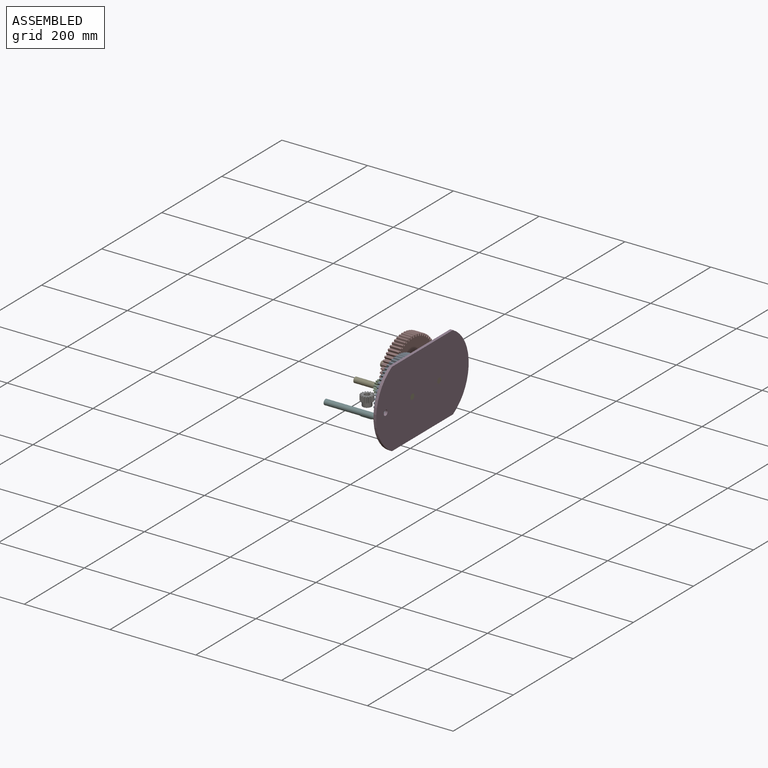
[diagram: assembled view]
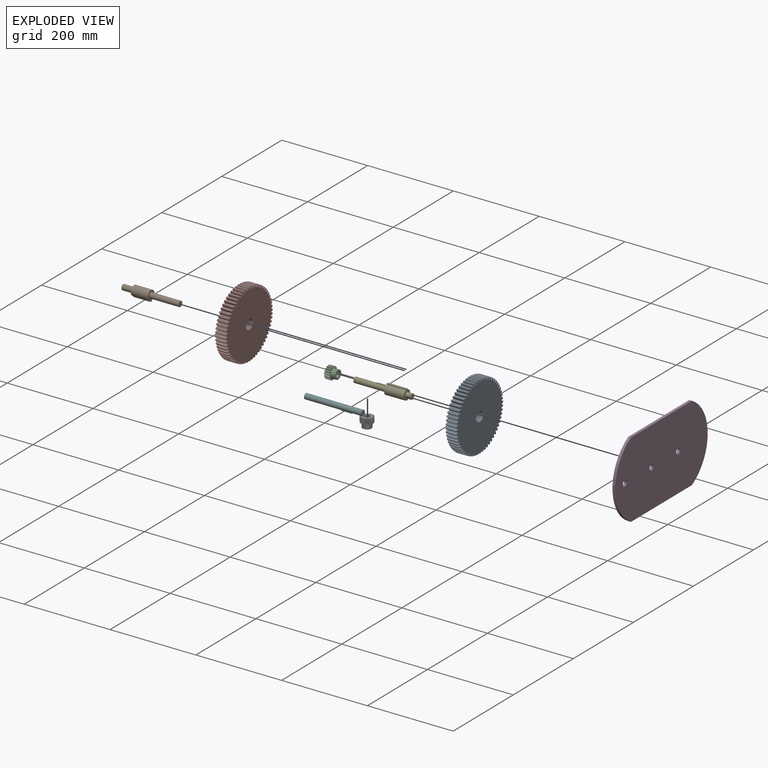
[diagram: exploded view]
GUIDED TOUR — MATED ASSEMBLY (Onshape document d9b905dab19b7fb7c35d887c, AutoMate assembly d9b905dab19b7fb7c35d887c_5e38b64e866237bc13c88aaf_ab64c40f906c745f3397f8be_default)

This assembly has 8 components, labeled P0..P7 below (a component is one placed occurrence of a part; the same part can appear more than once), held together by 10 mates. A mate is a constraint between two components; its type names the relative motion it leaves free:
  PLANAR — leaves sliding in the plane through the listed point (normal = the listed direction) and rotation about that normal free,
  SLIDER — leaves translation along the listed axis free.
Axis/direction vectors are unit vectors and 'through' points are millimeter coordinates, both in the assembly's world frame.

MATES
  1. SLIDER "Slider 1": P4 <-> P3, axis (1.000, 0.000, 0.000) through (10.44, -8.08, 14.03) mm
  2. SLIDER "Slider 3": P7 <-> P1, axis (1.000, 0.000, 0.000) through (-50.27, 80.82, 14.03) mm
  3. PLANAR "Planar 4": P2 <-> P4, direction (1.000, 0.000, 0.000) through (-48.08, -8.08, 13.77) mm
  4. PLANAR "Planar 6": P0 <-> P4, direction (-1.000, 0.000, 0.000) through (-48.08, -8.02, 14.03) mm
  5. PLANAR "Planar 3": P5 <-> P3, direction (1.000, 0.000, 0.000) through (10.44, -107.13, 5.17) mm
  6. SLIDER "Slider 4": P3 <-> P1, axis (1.000, 0.000, 0.000) through (10.44, 80.82, 14.03) mm
  7. SLIDER "Slider 2": P0 <-> P4, axis (1.000, 0.000, 0.000) through (-24.26, -8.08, 14.03) mm
  8. PLANAR "Planar 5": P2 <-> P4, direction (0.000, 1.000, 0.000) through (-63.37, -9.67, 21.08) mm
  9. PLANAR "Planar 2": P3 <-> P1, direction (1.000, 0.000, 0.000) through (10.44, 80.82, 14.03) mm
  10. PLANAR "Planar 1": P4 <-> P3, direction (1.000, 0.000, 0.000) through (10.44, -8.08, 14.03) mm

ASSEMBLY ORDER
  1. P4 — the base component [order heuristic]
  2. P2 — core [order heuristic]
  3. P1 [order verified]
  4. P7 [order verified]
  5. P0 — core [order heuristic]
  6. P3 [order verified]
  7. P5 [order verified]
  8. P6 [order verified]
Order-tag legend:
  [order verified] — this step's position reverses a verified removal order: the component was checked to insert without passing through the ones already placed.
  [order heuristic] — the first 3 components form the assembly's core: parts whose collision-free extraction could not be verified, listed in mate-graph order.

Of the 8 components, 3 carry the full construction recipe — the FeatureScript program that regenerates the part's solid from scratch; the rest are supplied as boundary geometry only.
Each toured component is shown spotlighted twice — in the assembled view, then in the exploded view, where a leader line traces a displaced component back to its assembled socket (saturated green if recipe-attached, orange if geometry-only; every other component desaturated gray) — followed by its recipe or geometry summary and the mates that hold it.
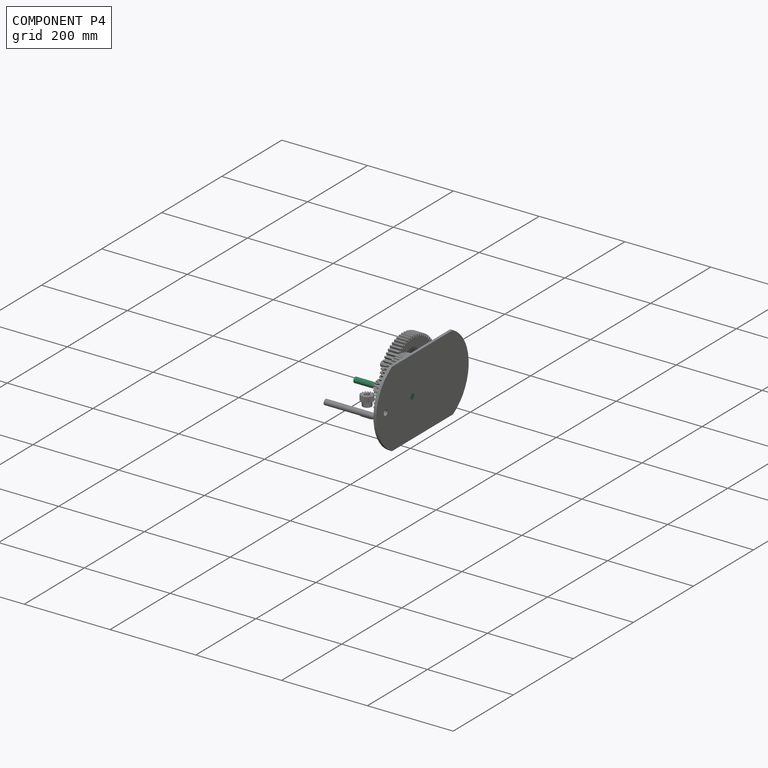
[diagram: component P4 — assembled]
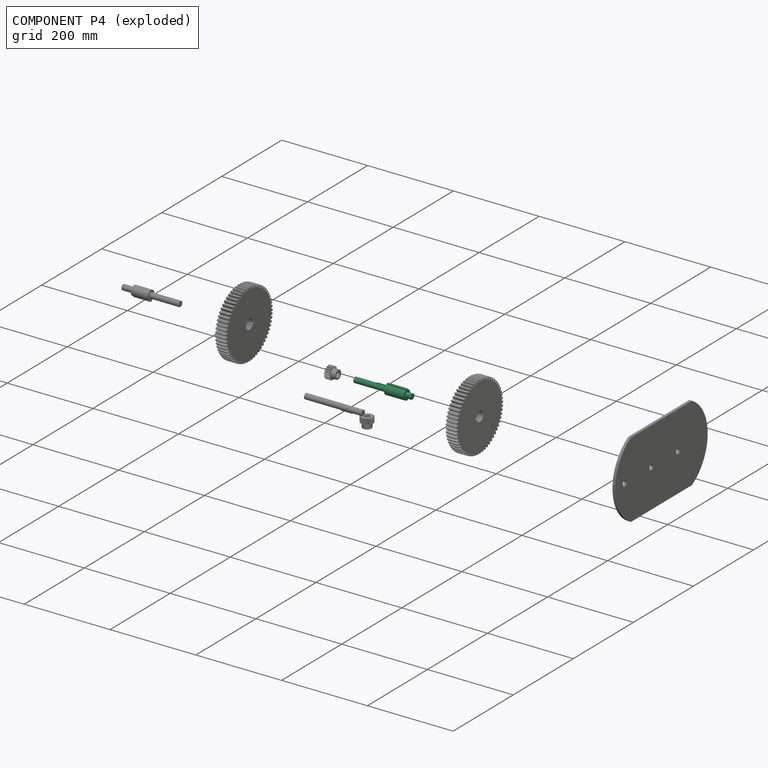
[diagram: component P4 — exploded]
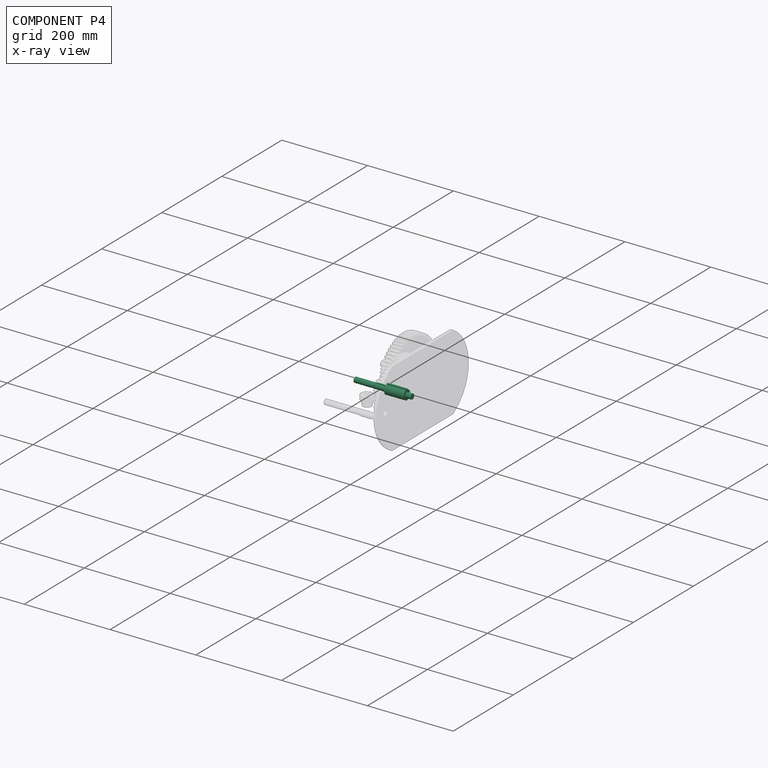
[diagram: component P4 — x-ray view]
COMPONENT P4 — recipe-attached (CADFS 00604843, mesh-verified: the recipe's output STEP matches this component's geometry to below the mesh-comparison resolution (tessellation chordal tolerance ~0.206 mm)).
Held by: SLIDER mate "Slider 1" to P3; PLANAR mate "Planar 4" to P2; PLANAR mate "Planar 6" to P0; SLIDER mate "Slider 2" to P0; PLANAR mate "Planar 5" to P2; PLANAR mate "Planar 1" to P3.
Construction recipe (FeatureScript — the CAD program that rebuilds this solid; sketch coordinates are in the units given by the * unit suffixes, e.g. mm):

FeatureScript 1511;
import(path : "onshape/std/geometry.fs", version : "1511.0");
import(path : "onshape/std/common.fs", version : "1511.0");
const mm = millimeter;
const VERTEX = EntityType.VERTEX;
const EDGE = EntityType.EDGE;
const FACE = EntityType.FACE;
const BODY = EntityType.BODY;
function v(x, y){return vector(x, y);}
function OD(order){return orderDisambiguation(order);}
function OSD(set){return originalSetDisambiguation(set);}
function TD(topology){return topologyDisambiguation(topology);}
function TDD(query){return trueDependencyDisambiguation(query);}
function sQuery(a, b, c) {return sketchEntityQuery(a, b, c);}

annotation { "Feature Type Name" : "Feature", "Feature Type Description" : "" }
export const myFeature = defineFeature(function(context is Context, id is Id, definition is map)
    precondition{}
    {
        {
            var Q0;
            Q0=qCreatedBy(makeId("Front.planeOp"),FACE);
            var sketch = newSketch(context, id + "F0", { "sketchPlane" : qUnion([Q0])});
            skLineSegment(sketch, "E0.bottom", {"start": v(0, 0) * mm, "end": v(133.35, 0) * mm});
            skLineSegment(sketch, "E0.top", {"start": v(0, 6.35) * mm, "end": v(133.35, 6.35) * mm});
            skLineSegment(sketch, "E0.left", {"start": v(0, 0) * mm, "end": v(0, 6.35) * mm});
            skLineSegment(sketch, "E0.right", {"start": v(133.35, 0) * mm, "end": v(133.35, 6.35) * mm});
            skLineSegment(sketch, "E1.bottom", {"start": v(120.65, 0) * mm, "end": v(74.83, 0) * mm});
            skLineSegment(sketch, "E1.top", {"start": v(120.65, 11.11) * mm, "end": v(74.83, 11.11) * mm});
            skLineSegment(sketch, "E1.left", {"start": v(120.65, 0) * mm, "end": v(120.65, 11.11) * mm});
            skLineSegment(sketch, "E1.right", {"start": v(74.83, 0) * mm, "end": v(74.83, 11.11) * mm});
            skLineSegment(sketch, "E2", {"start": v(120.65, 0) * mm, "end": v(133.35, 0) * mm});
            skSolve(sketch);
        }
        {
            var Q0;
            {var subQ0=sQuery(id+"F0.wireOp",EDGE,"E0.bottom");Q0=makeQuery(id+"F0.imprint","IMPRINT",FACE,{"disambiguationData":[TD([[makeQuery(id+"F0.imprint","IMPRINT",EDGE,{"derivedFrom":subQ0}),1.0]])]});}
            var Q1;
            {var subQ5=sQuery(id+"F0.wireOp",EDGE,"E1.bottom");Q1=makeQuery(id+"F0.imprint","IMPRINT",FACE,{"disambiguationData":[TD([[makeQuery(id+"F0.imprint","IMPRINT",EDGE,{"derivedFrom":subQ5}),-1.0]])]});}
            var Q2;
            {var subQ5=sQuery(id+"F0.wireOp",EDGE,"E1.top");Q2=makeQuery(id+"F0.imprint","IMPRINT",FACE,{"disambiguationData":[TD([[makeQuery(id+"F0.imprint","IMPRINT",EDGE,{"derivedFrom":subQ5}),1.0]])]});}
            var Q3;
            {var subQ0=sQuery(id+"F0.wireOp",EDGE,"E0.right");Q3=makeQuery(id+"F0.imprint","IMPRINT",FACE,{"disambiguationData":[TD([[makeQuery(id+"F0.imprint","IMPRINT",EDGE,{"derivedFrom":subQ0}),1.0]])]});}
            var Q4;
            Q4=sQuery(id+"F0.wireOp",EDGE,"E0.bottom");
            revolve(context, id + "F1", {"entities" : qUnion([Q0, Q1, Q2, Q3]), "axis" : qUnion([Q4]), "revolveType" : RevolveType.FULL});
        }
        {
            var Q0;
            Q0=makeQuery(id+"F1.opRevolve","SWEPT_FACE",FACE,{"disambiguationData":[OSD([sQuery(id+"F0.wireOp",EDGE,"E1.left")])]});
            var sketch = newSketch(context, id + "F2", { "sketchPlane" : qUnion([Q0])});
            skLineSegment(sketch, "E3", {"start": v(-2.39, 10.85) * mm, "end": v(2.39, 10.85) * mm});
            skLineSegment(sketch, "E4", {"start": v(-2.39, 10.85) * mm, "end": v(-2.39, 13.14) * mm});
            skLineSegment(sketch, "E5", {"start": v(-2.39, 13.14) * mm, "end": v(2.39, 13.14) * mm});
            skLineSegment(sketch, "E6", {"start": v(2.39, 13.14) * mm, "end": v(2.39, 10.85) * mm});
            skSolve(sketch);
        }
        {
            var Q0;
            {var subQ0=sQuery(id+"F2.wireOp",EDGE,"E4");Q0=makeQuery(id+"F2.imprint","IMPRINT",FACE,{"disambiguationData":[TD([[makeQuery(id+"F2.imprint","IMPRINT",EDGE,{"derivedFrom":subQ0}),-1.0]])]});}
            extrude(context, id + "F3", {"entities" : qUnion([Q0]), "operationType" : NewBodyOperationType.ADD, "oppositeDirection" : true, "depth" : 45.82 * mm, "offsetDistance" : 25 * mm});
        }
        {
            var Q0;
            Q0=makeQuery(id+"F1.opRevolve","SWEPT_FACE",FACE,{"disambiguationData":[OSD([sQuery(id+"F0.wireOp",EDGE,"E1.right")])]});
            var sketch = newSketch(context, id + "F4", { "sketchPlane" : qUnion([Q0])});
            skLineSegment(sketch, "E7", {"start": v(-1.59, 6.15) * mm, "end": v(1.59, 6.15) * mm});
            skLineSegment(sketch, "E8", {"start": v(-1.59, 6.15) * mm, "end": v(-1.59, 7.67) * mm});
            skLineSegment(sketch, "E9", {"start": v(-1.59, 7.67) * mm, "end": v(1.59, 7.67) * mm});
            skLineSegment(sketch, "E10", {"start": v(1.59, 7.67) * mm, "end": v(1.59, 6.15) * mm});
            skSolve(sketch);
        }
        {
            var Q0;
            {var subQ0=sQuery(id+"F4.wireOp",EDGE,"E8");Q0=makeQuery(id+"F4.imprint","IMPRINT",FACE,{"disambiguationData":[TD([[makeQuery(id+"F4.imprint","IMPRINT",EDGE,{"derivedFrom":subQ0}),-1.0]])]});}
            extrude(context, id + "F5", {"entities" : qUnion([Q0]), "operationType" : NewBodyOperationType.ADD, "depth" : 23.83 * mm, "offsetDistance" : 25 * mm});
        }
    });
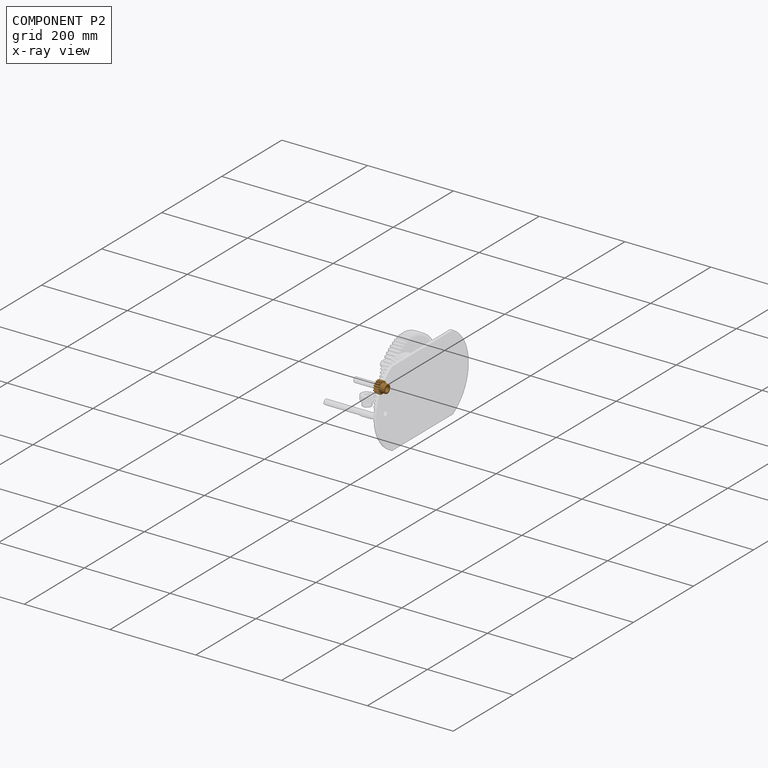
[diagram: component P2 — x-ray view]
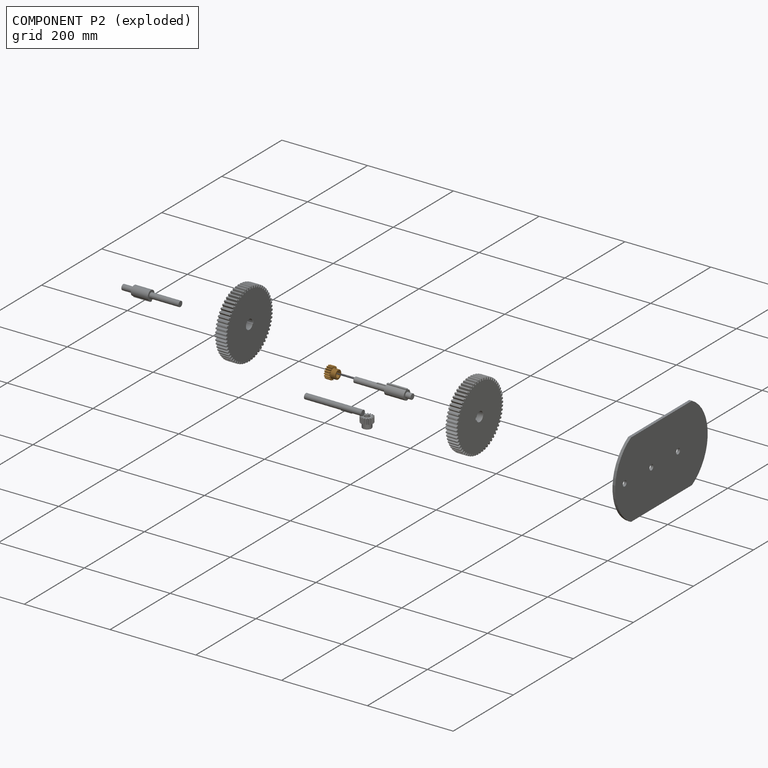
[diagram: component P2 — exploded]
COMPONENT P2 — geometry summary (no construction recipe available for this part):
  bounding box: 28.9 x 28.9 x 24.0 mm
  B-rep topology: 1 solid, 198 faces, 1148 edges
  volume: 6841 mm^3 (34% of its bounding box)
Held by: PLANAR mate "Planar 4" to P4; PLANAR mate "Planar 5" to P4.
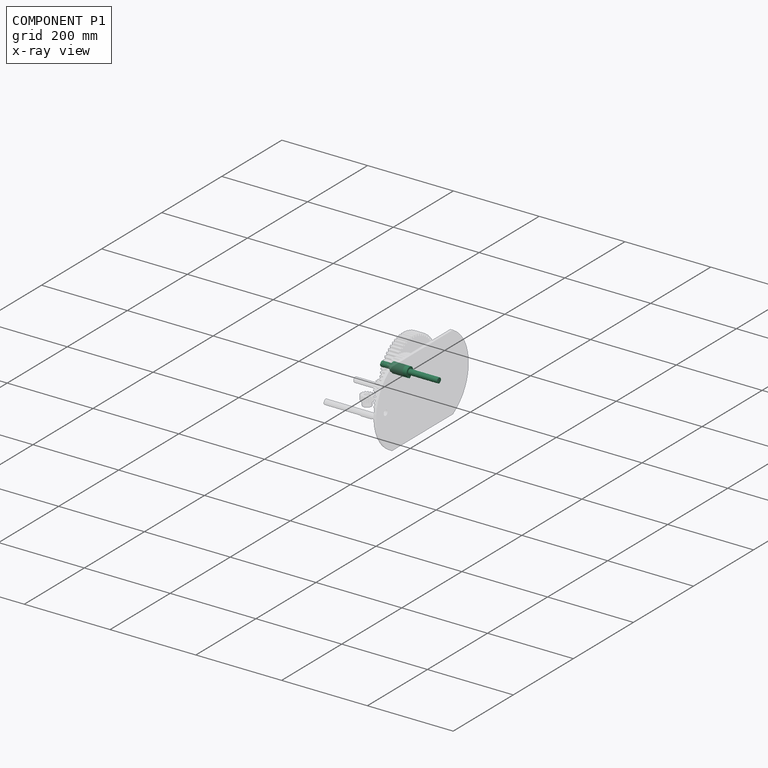
[diagram: component P1 — x-ray view]
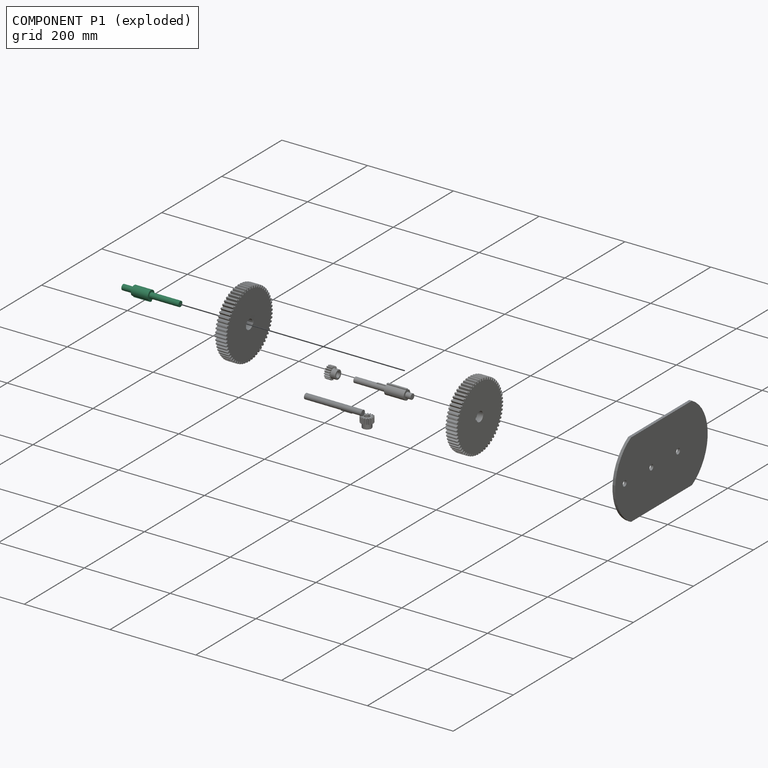
[diagram: component P1 — exploded]
COMPONENT P1 — recipe-attached (CADFS 00604842, mesh-verified: the recipe's output STEP matches this component's geometry to below the mesh-comparison resolution (tessellation chordal tolerance ~0.206 mm)).
Held by: SLIDER mate "Slider 3" to P7; SLIDER mate "Slider 4" to P3; PLANAR mate "Planar 2" to P3.
Construction recipe (FeatureScript — the CAD program that rebuilds this solid; sketch coordinates are in the units given by the * unit suffixes, e.g. mm):

FeatureScript 1511;
import(path : "onshape/std/geometry.fs", version : "1511.0");
import(path : "onshape/std/common.fs", version : "1511.0");
const mm = millimeter;
const VERTEX = EntityType.VERTEX;
const EDGE = EntityType.EDGE;
const FACE = EntityType.FACE;
const BODY = EntityType.BODY;
function v(x, y){return vector(x, y);}
function OD(order){return orderDisambiguation(order);}
function OSD(set){return originalSetDisambiguation(set);}
function TD(topology){return topologyDisambiguation(topology);}
function TDD(query){return trueDependencyDisambiguation(query);}
function sQuery(a, b, c) {return sketchEntityQuery(a, b, c);}

annotation { "Feature Type Name" : "Feature", "Feature Type Description" : "" }
export const myFeature = defineFeature(function(context is Context, id is Id, definition is map)
    precondition{}
    {
        {
            var Q0;
            Q0=qCreatedBy(makeId("Front.planeOp"),FACE);
            var sketch = newSketch(context, id + "F0", { "sketchPlane" : qUnion([Q0])});
            skLineSegment(sketch, "E0.bottom", {"start": v(0, 0) * mm, "end": v(133.35, 0) * mm});
            skLineSegment(sketch, "E0.left", {"start": v(0, 0) * mm, "end": v(0, 6.35) * mm});
            skLineSegment(sketch, "E0.right", {"start": v(133.35, 0) * mm, "end": v(133.35, 6.35) * mm});
            skLineSegment(sketch, "E1.top", {"start": v(120.65, 11.11) * mm, "end": v(80.98, 11.11) * mm});
            skLineSegment(sketch, "E1.left", {"start": v(120.65, 6.35) * mm, "end": v(120.65, 11.11) * mm});
            skLineSegment(sketch, "E1.right", {"start": v(80.98, 6.35) * mm, "end": v(80.98, 11.11) * mm});
            skLineSegment(sketch, "E2", {"start": v(80.98, 6.35) * mm, "end": v(0, 6.35) * mm});
            skLineSegment(sketch, "E3", {"start": v(120.65, 6.35) * mm, "end": v(133.35, 6.35) * mm});
            skSolve(sketch);
        }
        {
            var Q0;
            Q0 = qSketchRegion(id + "F0", true);
            var Q1;
            Q1=sQuery(id+"F0.wireOp",EDGE,"E0.bottom");
            revolve(context, id + "F1", {"entities" : qUnion([Q0]), "axis" : qUnion([Q1]), "revolveType" : RevolveType.FULL});
        }
        {
            var Q0;
            Q0=makeQuery(id+"F1.opRevolve","SWEPT_FACE",FACE,{"disambiguationData":[OSD([sQuery(id+"F0.wireOp",EDGE,"E1.left")])]});
            var sketch = newSketch(context, id + "F2", { "sketchPlane" : qUnion([Q0])});
            skLineSegment(sketch, "E4", {"start": v(-2.39, 10.85) * mm, "end": v(2.39, 10.85) * mm});
            skLineSegment(sketch, "E5", {"start": v(-2.39, 10.85) * mm, "end": v(-2.39, 13.14) * mm});
            skLineSegment(sketch, "E6", {"start": v(2.39, 10.85) * mm, "end": v(2.39, 13.14) * mm});
            skLineSegment(sketch, "E7", {"start": v(2.39, 13.14) * mm, "end": v(-2.39, 13.14) * mm});
            skSolve(sketch);
        }
        {
            var Q0;
            {var subQ0=sQuery(id+"F2.wireOp",EDGE,"E5");Q0=makeQuery(id+"F2.imprint","IMPRINT",FACE,{"disambiguationData":[TD([[makeQuery(id+"F2.imprint","IMPRINT",EDGE,{"derivedFrom":subQ0}),-1.0]])]});}
            extrude(context, id + "F3", {"entities" : qUnion([Q0]), "operationType" : NewBodyOperationType.ADD, "oppositeDirection" : true, "depth" : 39.65 * mm, "offsetDistance" : 25 * mm});
        }
        {
            var Q0;
            Q0=makeQuery(id+"F1.opRevolve","SWEPT_FACE",FACE,{"disambiguationData":[OSD([sQuery(id+"F0.wireOp",EDGE,"E0.right")])]});
            extrude(context, id + "F4", {"entities" : qUnion([Q0]), "operationType" : NewBodyOperationType.ADD, "depth" : 12.7 * mm, "offsetDistance" : 25 * mm});
        }
        {
            var Q0;
            Q0=makeQuery(id+"F1.opRevolve","SWEPT_FACE",FACE,{"disambiguationData":[OSD([sQuery(id+"F0.wireOp",EDGE,"E0.left")])]});
            extrude(context, id + "F5", {"entities" : qUnion([Q0]), "operationType" : NewBodyOperationType.REMOVE, "oppositeDirection" : true, "depth" : 12.7 * mm, "offsetDistance" : 25 * mm});
        }
    });
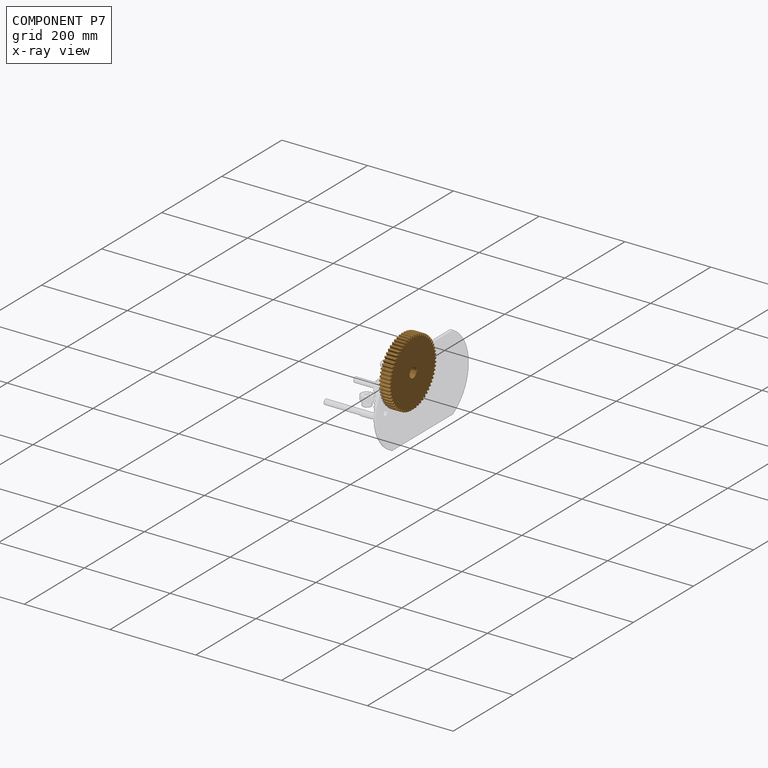
[diagram: component P7 — x-ray view]
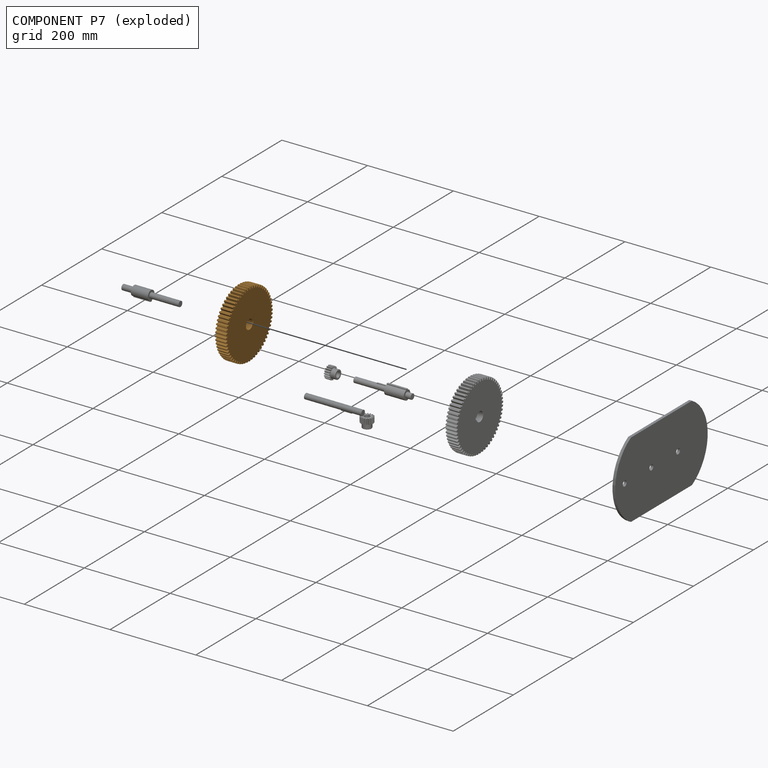
[diagram: component P7 — exploded]
COMPONENT P7 — geometry summary (no construction recipe available for this part):
  bounding box: 157.9 x 157.9 x 48.0 mm
  B-rep topology: 1 solid, 516 faces, 3048 edges
  volume: 511903 mm^3 (43% of its bounding box)
Held by: SLIDER mate "Slider 3" to P1.
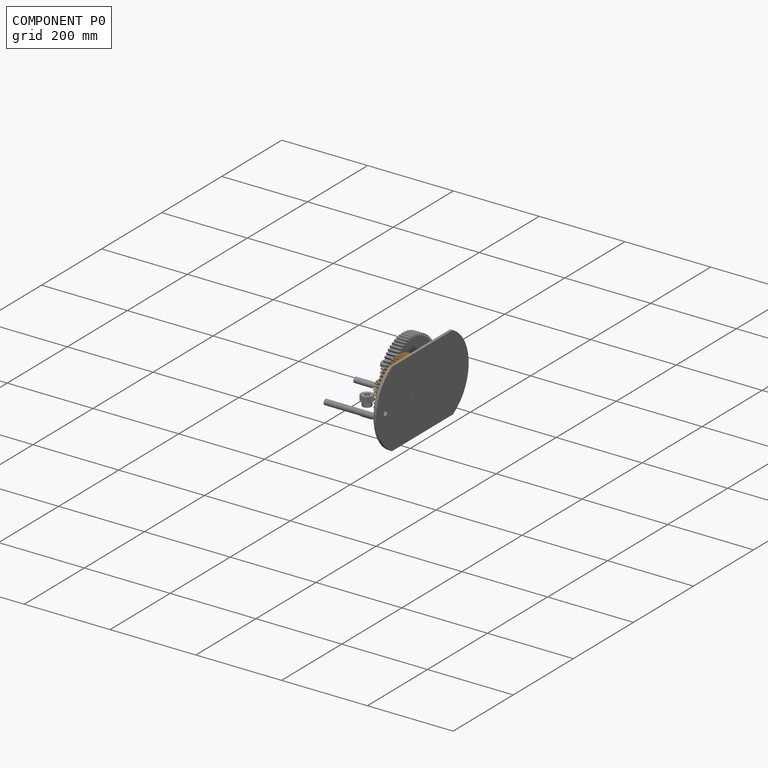
[diagram: component P0 — assembled]
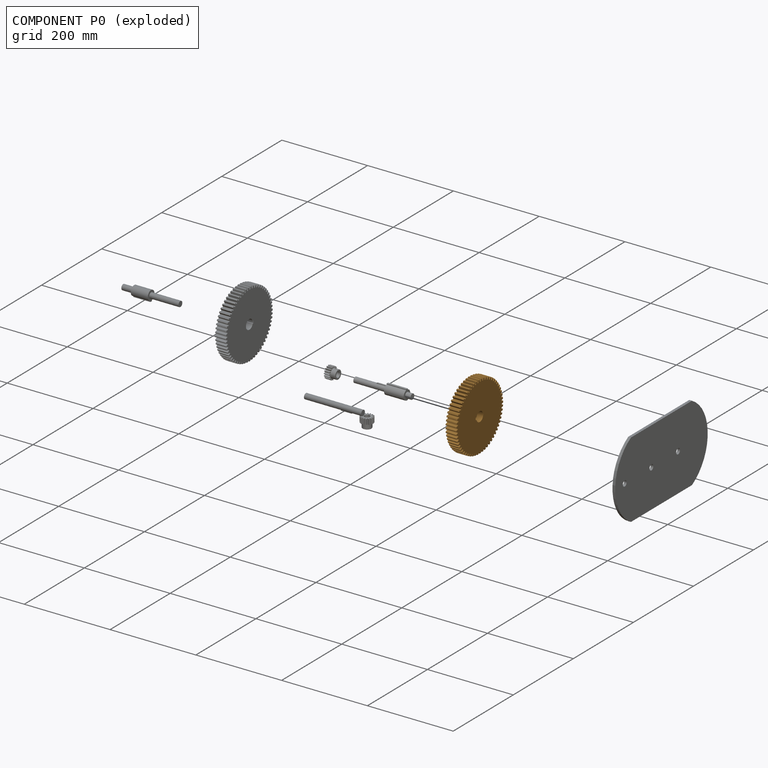
[diagram: component P0 — exploded]
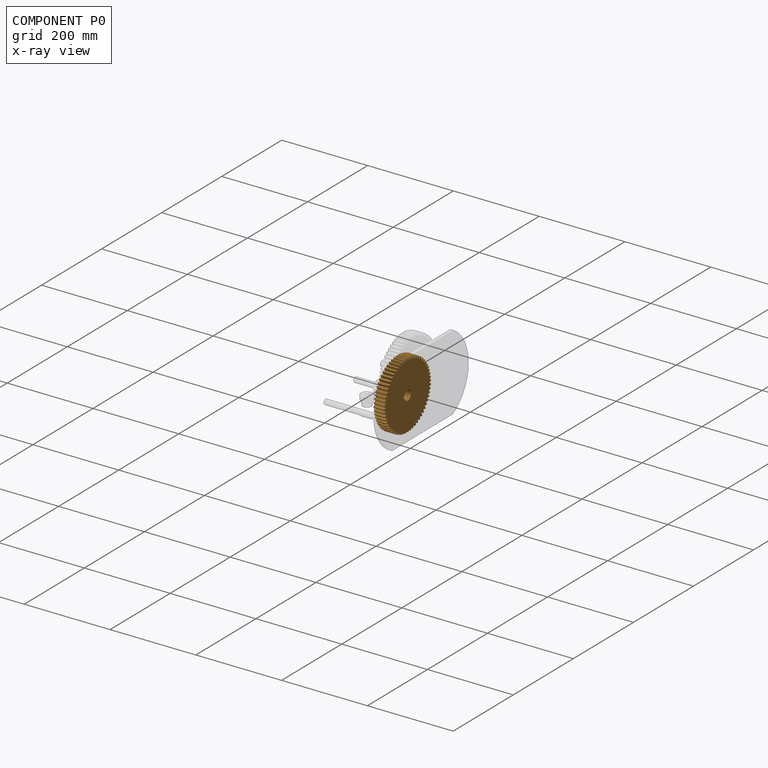
[diagram: component P0 — x-ray view]
COMPONENT P0 — geometry summary (no construction recipe available for this part):
  bounding box: 157.9 x 157.9 x 48.0 mm
  B-rep topology: 1 solid, 516 faces, 3048 edges
  volume: 511903 mm^3 (43% of its bounding box)
Held by: PLANAR mate "Planar 6" to P4; SLIDER mate "Slider 2" to P4.
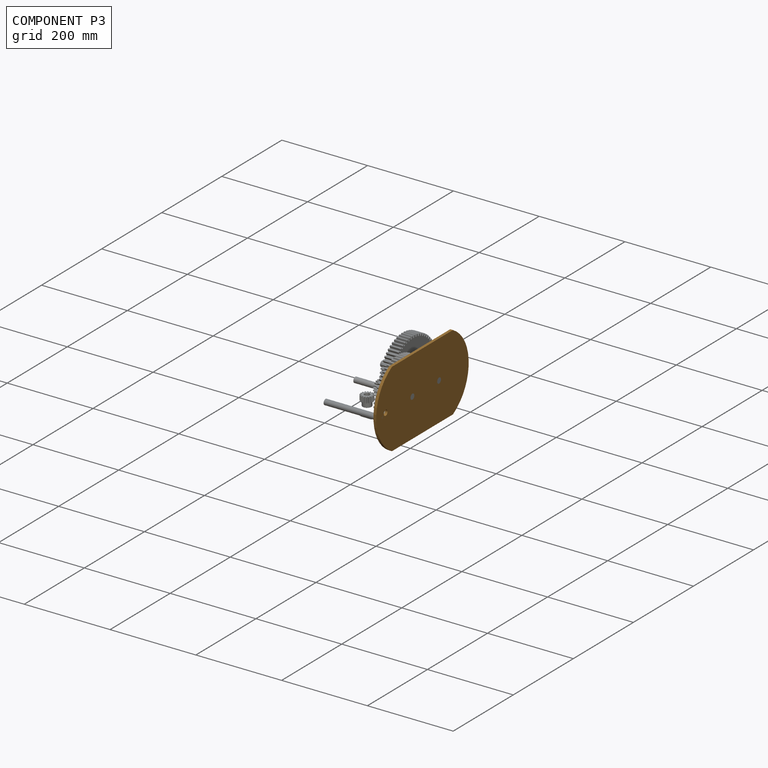
[diagram: component P3 — assembled]
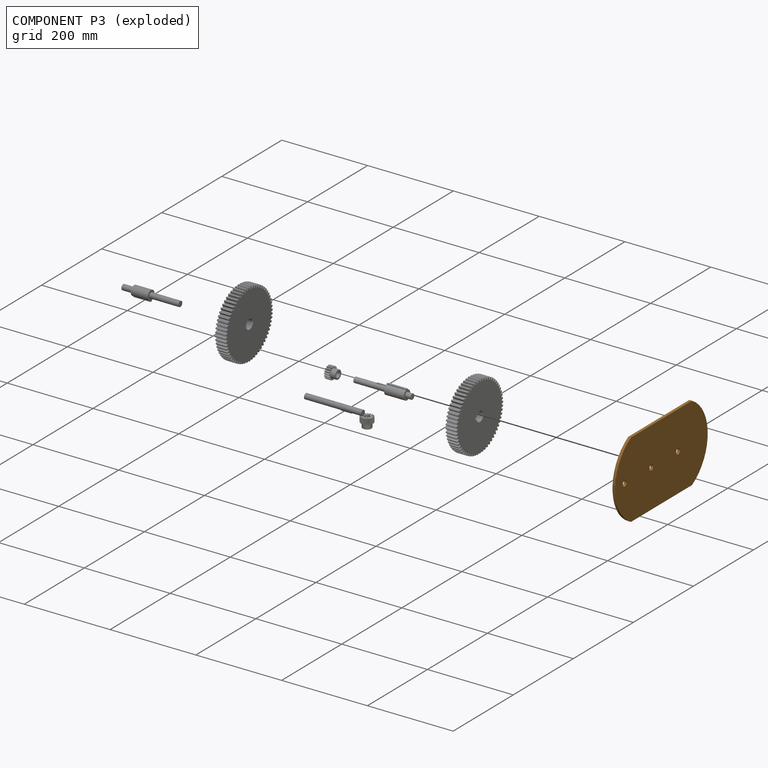
[diagram: component P3 — exploded]
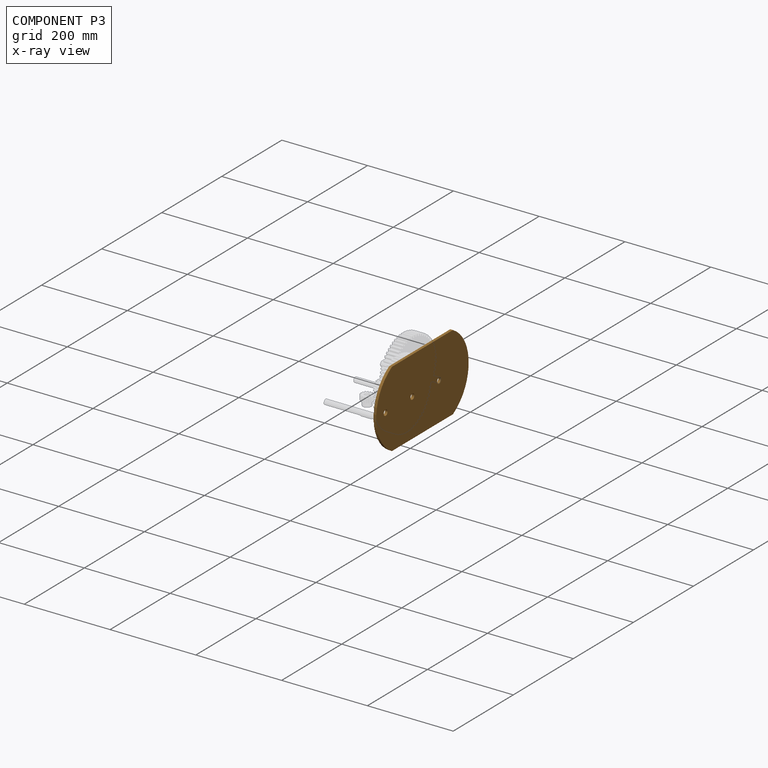
[diagram: component P3 — x-ray view]
COMPONENT P3 — geometry summary (no construction recipe available for this part):
  bounding box: 308.0 x 177.8 x 6.4 mm
  B-rep topology: 1 solid, 9 faces, 48 edges
  volume: 311147 mm^3 (89% of its bounding box)
  symmetry: 2-fold rotationally symmetric about the y axis; mirror-symmetric across its x mid-plane, z mid-plane
Held by: SLIDER mate "Slider 1" to P4; PLANAR mate "Planar 3" to P5; SLIDER mate "Slider 4" to P1; PLANAR mate "Planar 2" to P1; PLANAR mate "Planar 1" to P4.
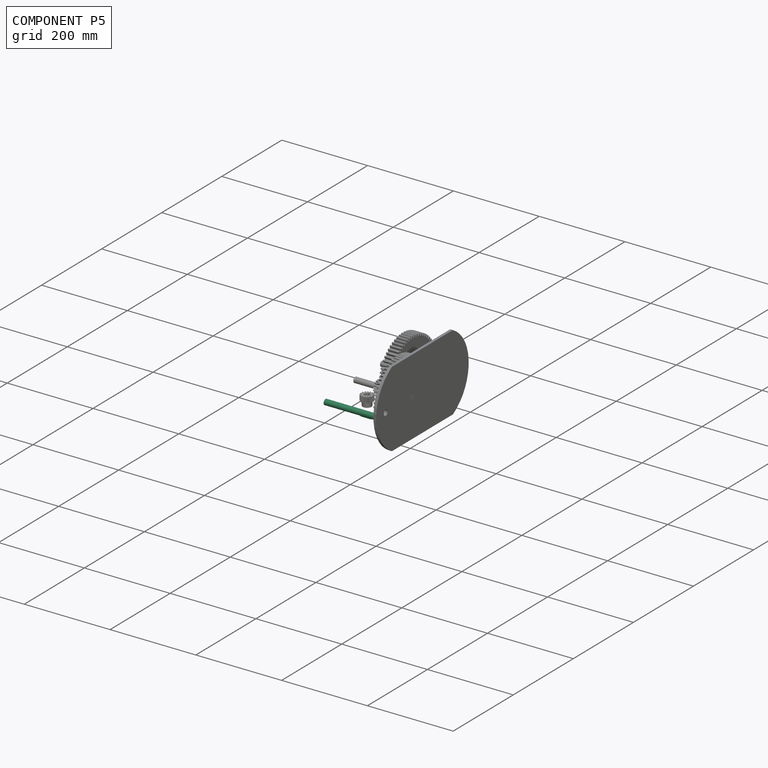
[diagram: component P5 — assembled]
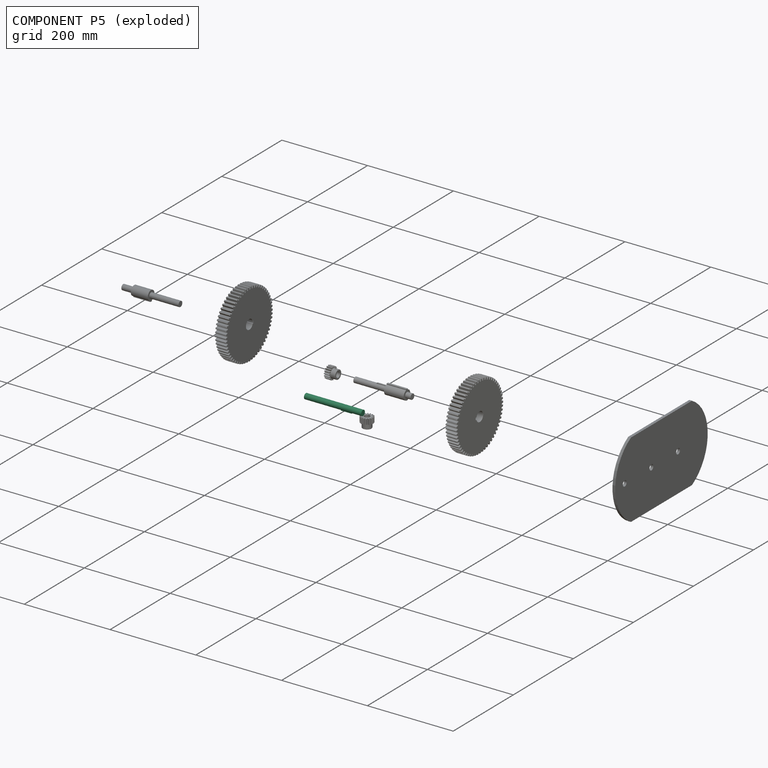
[diagram: component P5 — exploded]
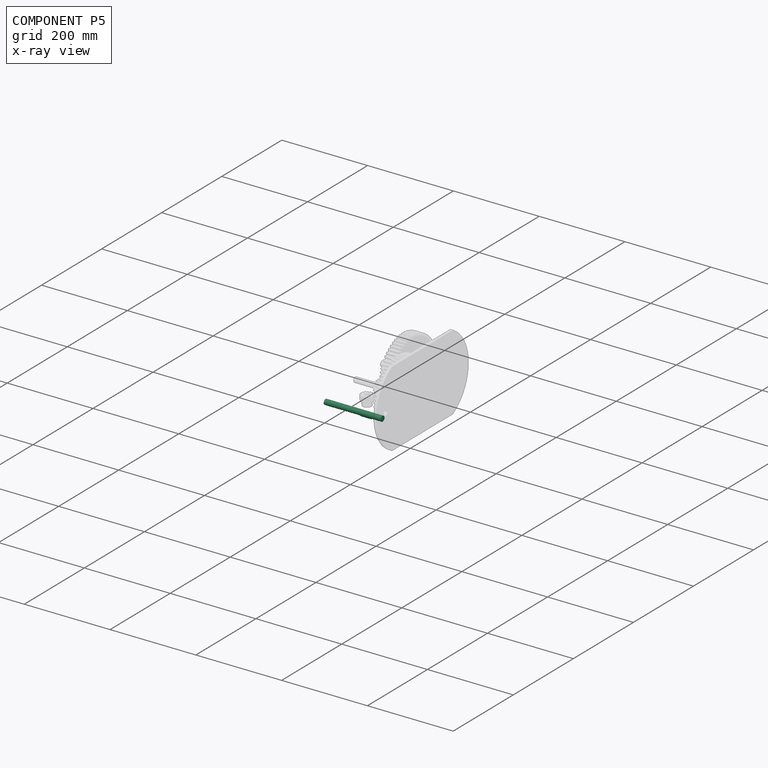
[diagram: component P5 — x-ray view]
COMPONENT P5 — recipe-attached (CADFS 00604844, mesh-verified: the recipe's output STEP matches this component's geometry to below the mesh-comparison resolution (tessellation chordal tolerance ~0.202 mm)).
Held by: PLANAR mate "Planar 3" to P3.
Construction recipe (FeatureScript — the CAD program that rebuilds this solid; sketch coordinates are in the units given by the * unit suffixes, e.g. mm):

FeatureScript 1511;
import(path : "onshape/std/geometry.fs", version : "1511.0");
import(path : "onshape/std/common.fs", version : "1511.0");
const mm = millimeter;
const VERTEX = EntityType.VERTEX;
const EDGE = EntityType.EDGE;
const FACE = EntityType.FACE;
const BODY = EntityType.BODY;
function v(x, y){return vector(x, y);}
function OD(order){return orderDisambiguation(order);}
function OSD(set){return originalSetDisambiguation(set);}
function TD(topology){return topologyDisambiguation(topology);}
function TDD(query){return trueDependencyDisambiguation(query);}
function sQuery(a, b, c) {return sketchEntityQuery(a, b, c);}

annotation { "Feature Type Name" : "Feature", "Feature Type Description" : "" }
export const myFeature = defineFeature(function(context is Context, id is Id, definition is map)
    precondition{}
    {
        {
            var Q0;
            Q0=qCreatedBy(makeId("Front.planeOp"),FACE);
            var sketch = newSketch(context, id + "F0", { "sketchPlane" : qUnion([Q0])});
            skLineSegment(sketch, "E0.bottom", {"start": v(-3.96, 0) * mm, "end": v(129.4, 0) * mm});
            skLineSegment(sketch, "E0.top", {"start": v(-3.96, 6.35) * mm, "end": v(129.4, 6.35) * mm});
            skLineSegment(sketch, "E0.left", {"start": v(-3.96, 0) * mm, "end": v(-3.96, 6.35) * mm});
            skLineSegment(sketch, "E0.right", {"start": v(129.4, 0) * mm, "end": v(129.4, 6.35) * mm});
            skSolve(sketch);
        }
        {
            var Q0;
            Q0=makeQuery(id+"F0.imprint","IMPRINT",FACE,{"disambiguationData":[TD([[makeQuery(id+"F0.imprint","IMPRINT",EDGE,{"derivedFrom":sQuery(id+"F0.wireOp",EDGE,"E0.bottom")}),1.0]])]});
            var Q1;
            Q1=sQuery(id+"F0.wireOp",EDGE,"E0.bottom");
            revolve(context, id + "F1", {"entities" : qUnion([Q0]), "axis" : qUnion([Q1]), "revolveType" : RevolveType.FULL});
        }
        {
            var Q0;
            Q0=makeQuery(id+"F1.opRevolve","SWEPT_FACE",FACE,{"disambiguationData":[OSD([sQuery(id+"F0.wireOp",EDGE,"E0.left")])]});
            var sketch = newSketch(context, id + "F2", { "sketchPlane" : qUnion([Q0])});
            skLineSegment(sketch, "E1", {"start": v(-1.59, 6.15) * mm, "end": v(1.59, 6.15) * mm});
            skLineSegment(sketch, "E2", {"start": v(1.59, 6.15) * mm, "end": v(1.59, 7.67) * mm});
            skLineSegment(sketch, "E3", {"start": v(1.59, 7.67) * mm, "end": v(-1.59, 7.67) * mm});
            skLineSegment(sketch, "E4", {"start": v(-1.59, 7.67) * mm, "end": v(-1.59, 6.15) * mm});
            skSolve(sketch);
        }
        {
            var Q0;
            {var subQ0=sQuery(id+"F2.wireOp",EDGE,"E2");Q0=makeQuery(id+"F2.imprint","IMPRINT",FACE,{"disambiguationData":[TD([[makeQuery(id+"F2.imprint","IMPRINT",EDGE,{"derivedFrom":subQ0}),1.0]])]});}
            extrude(context, id + "F3", {"entities" : qUnion([Q0]), "operationType" : NewBodyOperationType.ADD, "oppositeDirection" : true, "depth" : 50.8 * mm, "offsetDistance" : 25 * mm});
        }
        {
            var Q0;
            {var subQ0=sQuery(id+"F0.wireOp",EDGE,"E0.left");Q0=makeQuery(id+"F3.boolean.opBoolean","MERGE",FACE,{"derivedFrom":[makeQuery(id+"F1.opRevolve","SWEPT_FACE",FACE,{"disambiguationData":[OSD([subQ0])]}),makeQuery(id+"F3.opExtrude","CAP_FACE",FACE,{"disambiguationData":[OSD([sQuery(id+"F0.wireOp",EDGE,"E0.top"),subQ0,sQuery(id+"F2.wireOp",EDGE,"E2"),sQuery(id+"F2.wireOp",EDGE,"E3"),sQuery(id+"F2.wireOp",EDGE,"E4")])],"isStart":true})]});}
            var sketch = newSketch(context, id + "F4", { "sketchPlane" : qUnion([Q0])});
            skCircle(sketch, "E5", {"center": v(0, 0) * mm, "radius": 6.35 * mm});
            skLineSegment(sketch, "E6", {"start": v(-1.59, 6.15) * mm, "end": v(-1.59, 7.67) * mm});
            skLineSegment(sketch, "E7", {"start": v(-1.59, 7.67) * mm, "end": v(1.59, 7.67) * mm});
            skLineSegment(sketch, "E8", {"start": v(1.59, 7.67) * mm, "end": v(1.59, 6.15) * mm});
            skSolve(sketch);
        }
        {
            var Q0;
            {var subQ0=sQuery(id+"F4.wireOp",EDGE,"E6");Q0=makeQuery(id+"F4.imprint","IMPRINT",FACE,{"disambiguationData":[TD([[makeQuery(id+"F4.imprint","IMPRINT",EDGE,{"derivedFrom":subQ0}),1.0]])]});}
            extrude(context, id + "F5", {"entities" : qUnion([Q0]), "operationType" : NewBodyOperationType.REMOVE, "oppositeDirection" : true, "depth" : 25.4 * mm, "offsetDistance" : 25 * mm});
        }
    });
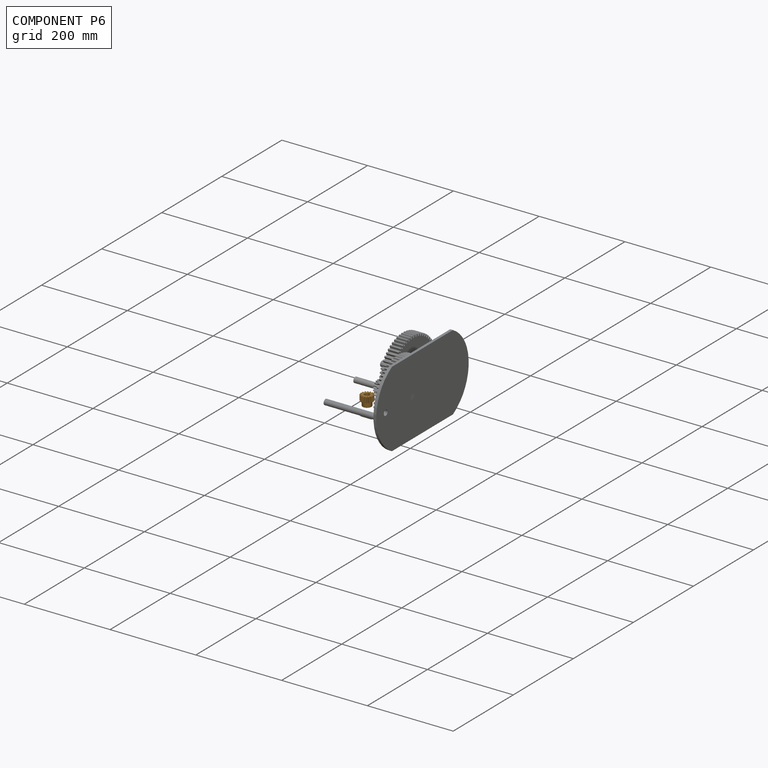
[diagram: component P6 — assembled]
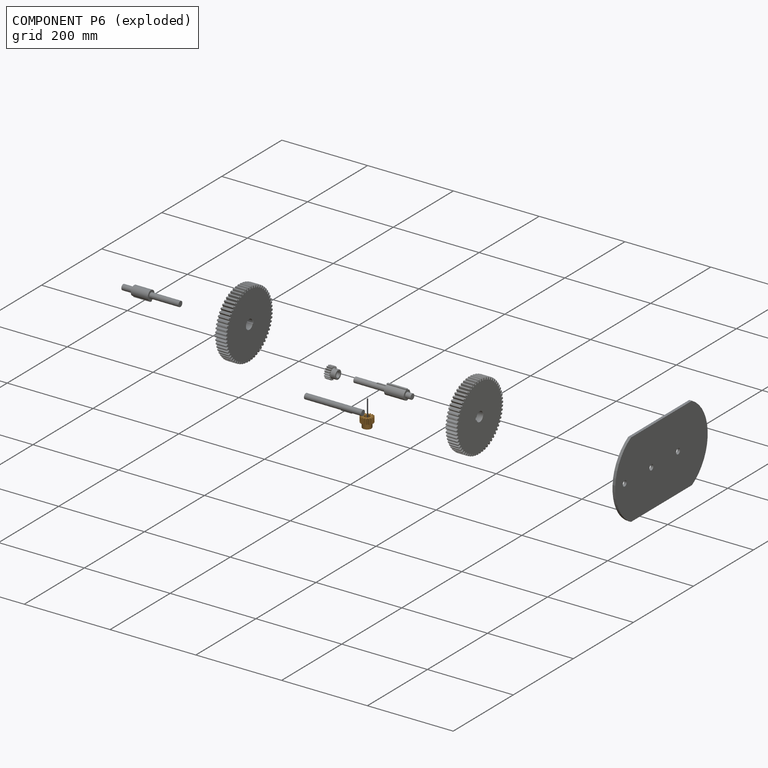
[diagram: component P6 — exploded]
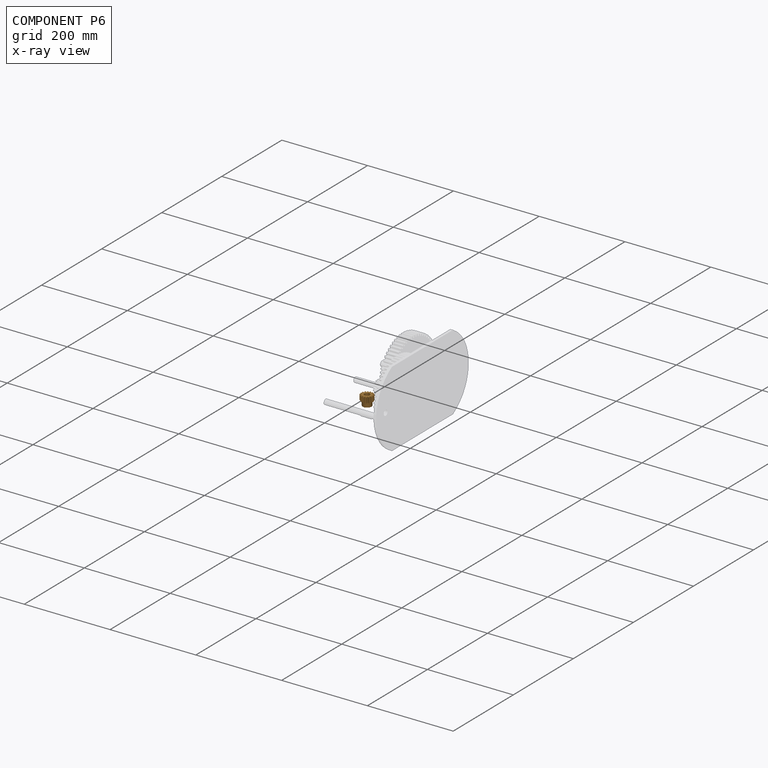
[diagram: component P6 — x-ray view]
COMPONENT P6 — geometry summary (no construction recipe available for this part):
  bounding box: 28.9 x 28.9 x 24.0 mm
  B-rep topology: 1 solid, 198 faces, 1148 edges
  volume: 6841 mm^3 (34% of its bounding box)
Held by: no mates (free).
PROVENANCE & LICENSES
Assembly (occurrences, transforms, mates, per-part STEP geometry): AutoMate dataset, Zenodo record 7776208, CC0.
Construction recipes: CADFS (HuggingFace VladPyatov/CADFS, CC-BY-4.0, layered over the ABC dataset), FeatureScript reconstruction programs keyed by ABC model id.
Join: ABC meta listings map ABC model id -> Onshape documentId; within a shared document, parts are matched by geometric signature (bounding-box dims + volume at 0.1% relative tolerance, exact B-rep face/solid counts).
Verification: 3 of this assembly's 8 components carry a recipe attachment, and every attachment is mesh-verified: the CADFS STEP and the AutoMate member STEP were compared as meshes in their shared local frame (symmetric sampled-point-to-mesh distance); worst across the 3 attachments: below the mesh-comparison resolution (tessellation chordal tolerance ~0.206 mm) on a 137 mm part.
Renders: orthographic iso camera (az 35 / el 25); the floor grid conveys scale (grid pitch printed in each image; no ruler). In the exploded view each component is displaced by its stored offset vector: the offsets alone carry the explosion direction (mate normal/axis signs are not orientation cues and do not encode it), and separation distances are assigned per mate-chain, not proportionally to assembly-order depth.
